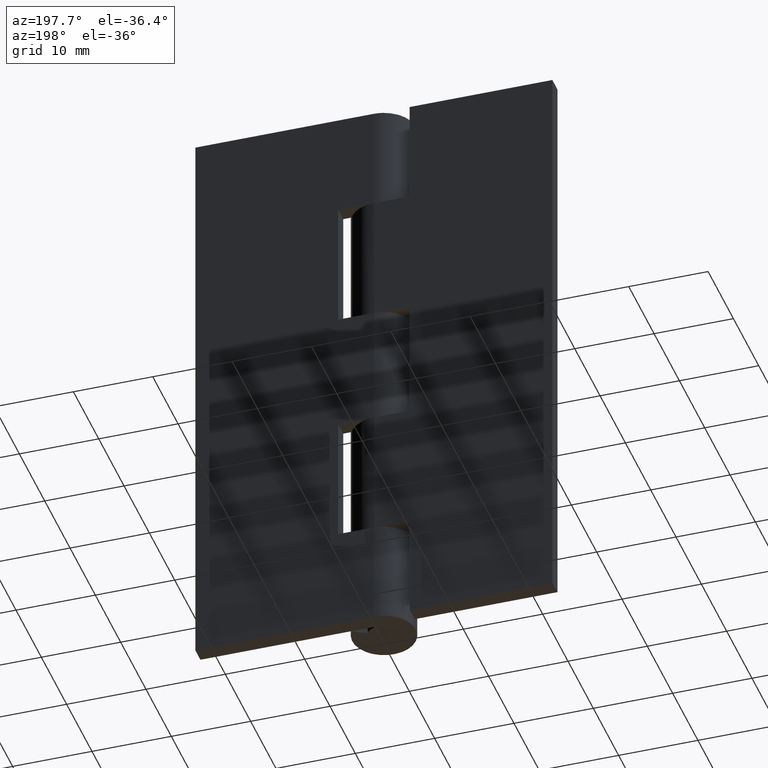
[diagram: clean part render]
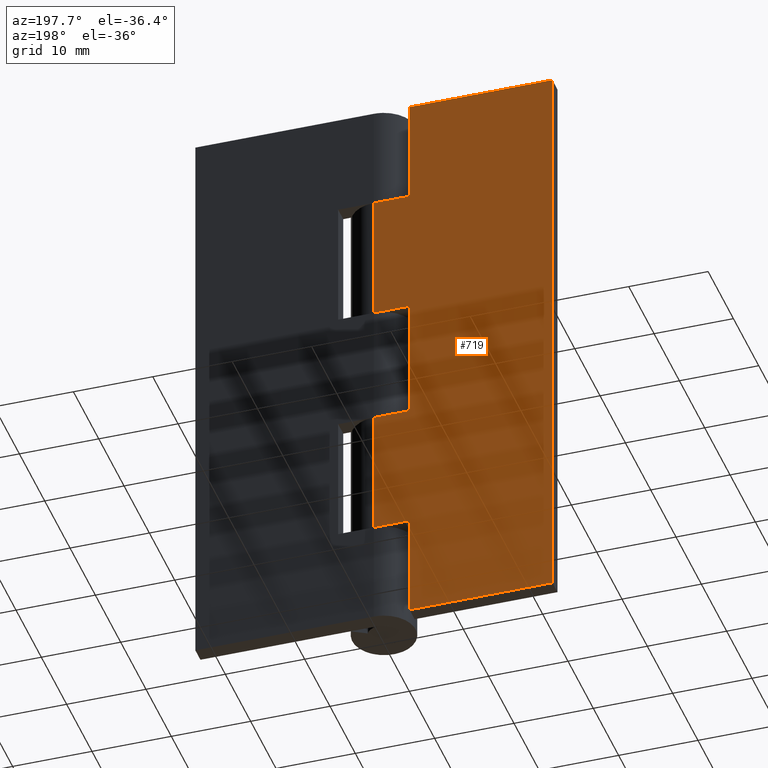
[diagram: same view with one face highlighted and labeled with its STEP entity id]
A machine part, auxiliary view. The second image highlights one B-rep face of the part: STEP entity #719.
In plain terms, the highlighted face is a freeform B-spline surface patch.
Its self-contained STEP definition (entity closure, byte-faithful):
#49=CARTESIAN_POINT('',(-4.500000000000000,4.0,29.699996999999900));
#50=VERTEX_POINT('',#49);
#51=CARTESIAN_POINT('',(0.0,4.0,29.699996999999900));
#52=VERTEX_POINT('',#51);
#53=CARTESIAN_POINT('',(-4.500000000000000,4.0,29.699996999999900));
#54=CARTESIAN_POINT('',(0.0,4.0,29.699996999999900));
#55=QUASI_UNIFORM_CURVE('',1,(#53,#54),.UNSPECIFIED.,.F.,.U.);
#56=EDGE_CURVE('',#50,#52,#55,.T.);
#128=CARTESIAN_POINT('',(-4.500000000000000,4.0,45.300002999999798));
#129=VERTEX_POINT('',#128);
#130=CARTESIAN_POINT('',(-4.500000000000000,4.0,45.300002999999798));
#131=CARTESIAN_POINT('',(-4.500000000000000,4.0,29.699996999999900));
#132=QUASI_UNIFORM_CURVE('',1,(#130,#131),.UNSPECIFIED.,.F.,.U.);
#133=EDGE_CURVE('',#129,#50,#132,.T.);
#157=CARTESIAN_POINT('',(0.0,4.0,45.300002999999798));
#158=VERTEX_POINT('',#157);
#212=CARTESIAN_POINT('',(0.0,4.0,45.300002999999798));
#213=CARTESIAN_POINT('',(-4.500000000000000,4.0,45.300002999999798));
#214=QUASI_UNIFORM_CURVE('',1,(#212,#213),.UNSPECIFIED.,.F.,.U.);
#215=EDGE_CURVE('',#158,#129,#214,.T.);
#227=CARTESIAN_POINT('',(0.0,4.0,13.300003000000000));
#228=VERTEX_POINT('',#227);
#283=CARTESIAN_POINT('',(-4.500000000000000,4.0,13.300003000000000));
#284=VERTEX_POINT('',#283);
#290=CARTESIAN_POINT('',(-4.500000000000000,4.0,13.300003000000000));
#291=CARTESIAN_POINT('',(0.0,4.0,13.300003000000000));
#292=QUASI_UNIFORM_CURVE('',1,(#290,#291),.UNSPECIFIED.,.F.,.U.);
#293=EDGE_CURVE('',#284,#228,#292,.T.);
#305=CARTESIAN_POINT('',(-4.500000000000000,4.0,0.0));
#306=VERTEX_POINT('',#305);
#312=CARTESIAN_POINT('',(-4.500000000000000,4.0,0.0));
#313=CARTESIAN_POINT('',(-4.500000000000000,4.0,13.300003000000000));
#314=QUASI_UNIFORM_CURVE('',1,(#312,#313),.UNSPECIFIED.,.F.,.U.);
#315=EDGE_CURVE('',#306,#284,#314,.T.);
#331=CARTESIAN_POINT('',(-4.500000000000000,4.0,61.699997000000003));
#332=VERTEX_POINT('',#331);
#333=CARTESIAN_POINT('',(0.0,4.0,61.699997000000003));
#334=VERTEX_POINT('',#333);
#335=CARTESIAN_POINT('',(-4.500000000000000,4.0,61.699997000000003));
#336=CARTESIAN_POINT('',(0.0,4.0,61.699997000000003));
#337=QUASI_UNIFORM_CURVE('',1,(#335,#336),.UNSPECIFIED.,.F.,.U.);
#338=EDGE_CURVE('',#332,#334,#337,.T.);
#410=CARTESIAN_POINT('',(-4.500000000000000,4.0,75.0));
#411=VERTEX_POINT('',#410);
#412=CARTESIAN_POINT('',(-4.500000000000000,4.0,75.0));
#413=CARTESIAN_POINT('',(-4.500000000000000,4.0,61.699997000000003));
#414=QUASI_UNIFORM_CURVE('',1,(#412,#413),.UNSPECIFIED.,.F.,.U.);
#415=EDGE_CURVE('',#411,#332,#414,.T.);
#439=CARTESIAN_POINT('',(-22.500000000000000,4.0,0.0));
#440=VERTEX_POINT('',#439);
#453=CARTESIAN_POINT('',(-22.500000000000000,4.0,75.0));
#454=VERTEX_POINT('',#453);
#460=CARTESIAN_POINT('',(-22.500000000000000,4.0,75.0));
#461=CARTESIAN_POINT('',(-22.500000000000000,4.0,0.0));
#462=QUASI_UNIFORM_CURVE('',1,(#460,#461),.UNSPECIFIED.,.F.,.U.);
#463=EDGE_CURVE('',#454,#440,#462,.T.);
#474=CARTESIAN_POINT('',(-22.500000000000000,4.0,75.0));
#475=CARTESIAN_POINT('',(-4.500000000000000,4.0,75.0));
#476=QUASI_UNIFORM_CURVE('',1,(#474,#475),.UNSPECIFIED.,.F.,.U.);
#477=EDGE_CURVE('',#454,#411,#476,.T.);
#493=CARTESIAN_POINT('',(-22.500000000000000,4.0,0.0));
#494=CARTESIAN_POINT('',(-4.500000000000000,4.0,0.0));
#495=QUASI_UNIFORM_CURVE('',1,(#493,#494),.UNSPECIFIED.,.F.,.U.);
#496=EDGE_CURVE('',#440,#306,#495,.T.);
#659=CARTESIAN_POINT('',(0.0,4.0,29.699996999999900));
#660=CARTESIAN_POINT('',(0.0,4.0,13.300003000000000));
#661=QUASI_UNIFORM_CURVE('',1,(#659,#660),.UNSPECIFIED.,.F.,.U.);
#662=EDGE_CURVE('',#52,#228,#661,.T.);
#690=CARTESIAN_POINT('',(0.0,4.0,61.699997000000003));
#691=CARTESIAN_POINT('',(0.0,4.0,45.300002999999798));
#692=QUASI_UNIFORM_CURVE('',1,(#690,#691),.UNSPECIFIED.,.F.,.U.);
#693=EDGE_CURVE('',#334,#158,#692,.T.);
#700=CARTESIAN_POINT('',(-23.623874956390630,4.0,-3.746249854635448));
#701=CARTESIAN_POINT('',(-23.623874956390630,4.0,78.746251866292212));
#702=CARTESIAN_POINT('',(1.123875559887663,4.0,-3.746249854635448));
#703=CARTESIAN_POINT('',(1.123875559887663,4.0,78.746251866292212));
#704=B_SPLINE_SURFACE_WITH_KNOTS('',1,1,((#700,#702),(#701,#703)),.UNSPECIFIED.,.F.,.F.,.U.,(2,2),(2,2),(0.0,82.492501720927663),(0.0,24.747750516278298),.UNSPECIFIED.);
#705=ORIENTED_EDGE('',*,*,#693,.T.);
#706=ORIENTED_EDGE('',*,*,#215,.T.);
#707=ORIENTED_EDGE('',*,*,#133,.T.);
#708=ORIENTED_EDGE('',*,*,#56,.T.);
#709=ORIENTED_EDGE('',*,*,#662,.T.);
#710=ORIENTED_EDGE('',*,*,#293,.F.);
#711=ORIENTED_EDGE('',*,*,#315,.F.);
#712=ORIENTED_EDGE('',*,*,#496,.F.);
#713=ORIENTED_EDGE('',*,*,#463,.F.);
#714=ORIENTED_EDGE('',*,*,#477,.T.);
#715=ORIENTED_EDGE('',*,*,#415,.T.);
#716=ORIENTED_EDGE('',*,*,#338,.T.);
#717=EDGE_LOOP('',(#705,#706,#707,#708,#709,#710,#711,#712,#713,#714,#715,#716));
#718=FACE_OUTER_BOUND('',#717,.T.);
#719=ADVANCED_FACE('',(#718),#704,.T.);